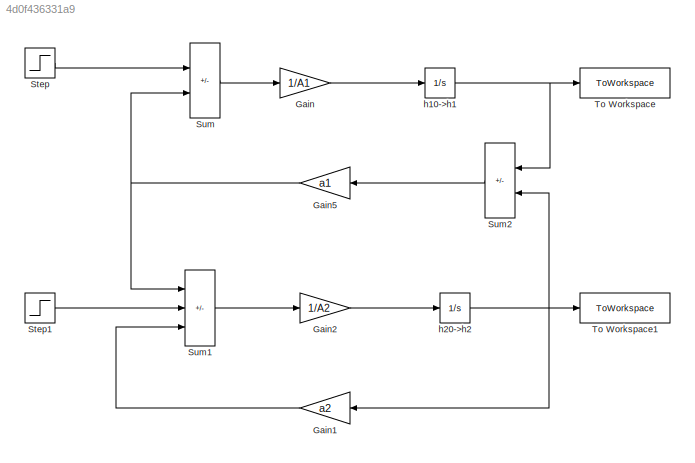
MODEL slx_4d0f436331a9
KIND model
CONFIG AbsTol = auto
CONFIG EnableMultiTasking = off
CONFIG FixedStep = auto
CONFIG MaxStep = auto
CONFIG MinStep = auto
CONFIG RelTol = 1e-3
CONFIG SampleTimeConstraint = Unconstrained
CONFIG Solver = VariableStepAuto
CONFIG SolverName = VariableStepAuto
CONFIG StartTime = 0.0
CONFIG StopTime = 10.0
BLOCK [Gain] Gain
  Gain = 1/A1
BLOCK [Gain] Gain1
  Gain = a2
BLOCK [Gain] Gain2
  Gain = 1/A2
BLOCK [Gain] Gain5
  Gain = a1
BLOCK [Step] Step
  After = fwe1+dfwe1
  Before = fwe1
  SampleTime = 0
  Time = 5
BLOCK [Step] Step1
  After = fwe2+dfwe2
  Before = fwe2
  SampleTime = 0
  Time = 5
BLOCK [Sum] Sum
  IconShape = rectangular
  Inputs = +-
  Ports = [2, 1]
BLOCK [Sum] Sum1
  IconShape = rectangular
  Inputs = ++-
  Ports = [3, 1]
BLOCK [Sum] Sum2
  IconShape = rectangular
  Inputs = +-
  NameLocation = top
  Ports = [2, 1]
BLOCK [ToWorkspace] To Workspace
  FixptAsFi = on
  MaxDataPoints = inf
  Ports = [1]
  SampleTime = -1
  VariableName = h1b
BLOCK [ToWorkspace] To Workspace1
  FixptAsFi = on
  MaxDataPoints = inf
  Ports = [1]
  SampleTime = -1
  VariableName = h2b
BLOCK [Integrator] h10->h1
  InitialCondition = h10
  Ports = [1, 1]
BLOCK [Integrator] h20->h2
  InitialCondition = h20
  Ports = [1, 1]
LINE Gain1:1 -> Sum1:3
LINE Gain2:1 -> h20->h2:1
NET Gain5:1 -> Sum1:1, Sum:2
LINE Gain:1 -> h10->h1:1
LINE Step1:1 -> Sum1:2
LINE Step:1 -> Sum:1
LINE Sum1:1 -> Gain2:1
LINE Sum2:1 -> Gain5:1
LINE Sum:1 -> Gain:1
NET h10->h1:1 -> Sum2:1, To Workspace:1
NET h20->h2:1 -> Gain1:1, Sum2:2, To Workspace1:1
note: NET lines group one-source signal fan-out (src -> all destinations, sorted); 1:1 wires keep LINE
